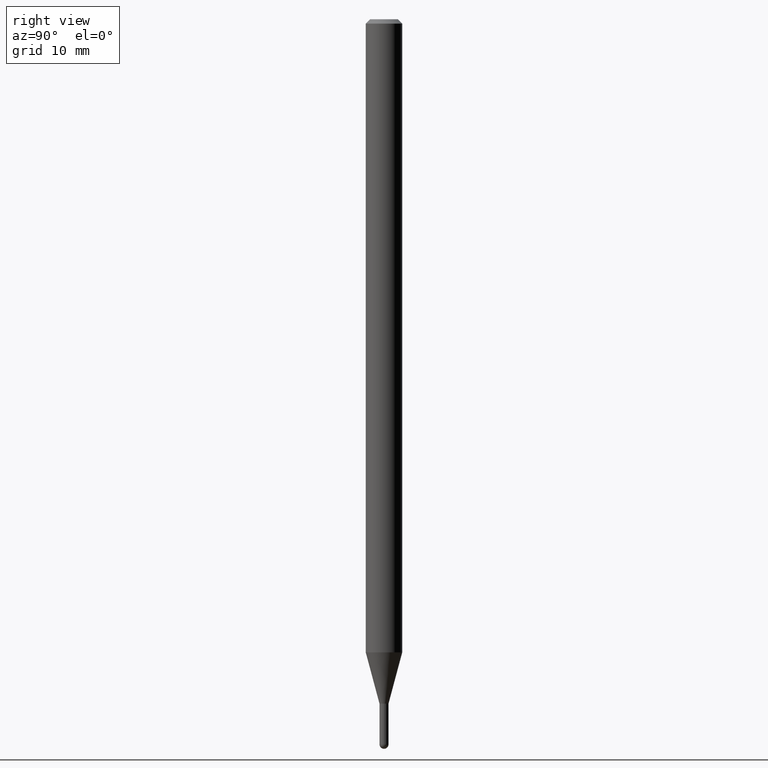
[diagram: clean part render]
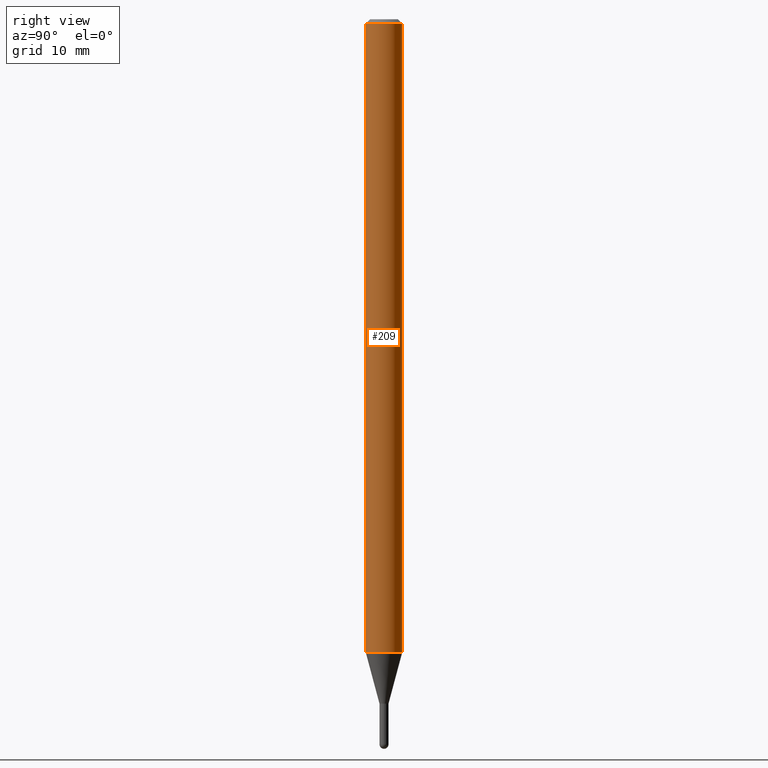
[diagram: same view with one face highlighted and labeled with its STEP entity id]
A machine part, right view. The second image highlights one B-rep face of the part: STEP entity #209.
In plain terms, the highlighted cylindrical surface (edge-blend (fillet) strip) has radius 1.5875 mm, axis along (-0, 0, 1).
Its self-contained STEP definition (entity closure, byte-faithful):
#6 = DIRECTION ( 'NONE',  ( -2.445469388235828600E-29, 3.491480505313426266E-15, 1.000000000000000000 ) ) ;
#18 = AXIS2_PLACEMENT_3D ( 'NONE', #236, #94, #242 ) ;
#43 = CIRCLE ( 'NONE', #111, 0.06250000000000000000 ) ;
#82 = CARTESIAN_POINT ( 'NONE',  ( 4.440892098501160615E-16, 0.06249999999999995837, -0.01500000000000022669 ) ) ;
#94 = DIRECTION ( 'NONE',  ( -2.445469388235828600E-29, 3.491480505313426266E-15, 1.000000000000000000 ) ) ;
#96 = ORIENTED_EDGE ( 'NONE', *, *, #347, .F. ) ;
#98 = VERTEX_POINT ( 'NONE', #186 ) ;
#111 = AXIS2_PLACEMENT_3D ( 'NONE', #481, #203, #168 ) ;
#166 = CARTESIAN_POINT ( 'NONE',  ( 5.305674763166256692E-29, -7.575093800905100250E-15, -2.169593612044267594 ) ) ;
#168 = DIRECTION ( 'NONE',  ( -6.982962677686265922E-15, -1.000000000000000000, 3.483106191921935554E-15 ) ) ;
#186 = CARTESIAN_POINT ( 'NONE',  ( -4.364351673553912750E-16, -0.06250000000000005551, -0.01499999999999979128 ) ) ;
#194 = DIRECTION ( 'NONE',  ( -2.445469388235828600E-29, 3.491480505313426266E-15, 1.000000000000000000 ) ) ;
#198 = DIRECTION ( 'NONE',  ( -6.982962677686265922E-15, -1.000000000000000000, 4.370956789862821150E-15 ) ) ;
#203 = DIRECTION ( 'NONE',  ( -2.445469388235828600E-29, 3.491480505313426266E-15, 1.000000000000000000 ) ) ;
#209 = ADVANCED_FACE ( 'NONE', ( #315 ), #282, .T. ) ;
#216 = VERTEX_POINT ( 'NONE', #483 ) ;
#218 = VECTOR ( 'NONE', #194, 39.37007874015748143 ) ;
#222 = LINE ( 'NONE', #353, #494 ) ;
#228 = CIRCLE ( 'NONE', #471, 0.06250000000000000000 ) ;
#236 = CARTESIAN_POINT ( 'NONE',  ( 0.000000000000000000, 0.000000000000000000, 0.000000000000000000 ) ) ;
#242 = DIRECTION ( 'NONE',  ( -6.982962677686265922E-15, -1.000000000000000000, 3.491480505313426266E-15 ) ) ;
#259 = EDGE_CURVE ( 'NONE', #216, #335, #228, .T. ) ;
#281 = VERTEX_POINT ( 'NONE', #82 ) ;
#282 = CYLINDRICAL_SURFACE ( 'NONE', #18, 0.06250000000000000000 ) ;
#293 = EDGE_CURVE ( 'NONE', #98, #281, #43, .T. ) ;
#315 = FACE_OUTER_BOUND ( 'NONE', #404, .T. ) ;
#335 = VERTEX_POINT ( 'NONE', #416 ) ;
#337 = ORIENTED_EDGE ( 'NONE', *, *, #293, .F. ) ;
#344 = EDGE_CURVE ( 'NONE', #335, #281, #386, .T. ) ;
#347 = EDGE_CURVE ( 'NONE', #216, #98, #222, .T. ) ;
#353 = CARTESIAN_POINT ( 'NONE',  ( -4.364351673553916201E-16, -0.06250000000000000000, 2.182175315820891416E-16 ) ) ;
#357 = DIRECTION ( 'NONE',  ( -2.445469388235828600E-29, 3.491480505313426266E-15, 1.000000000000000000 ) ) ;
#386 = LINE ( 'NONE', #389, #218 ) ;
#389 = CARTESIAN_POINT ( 'NONE',  ( 4.440892098500625669E-16, 0.06250000000000000000, -2.182175315820891416E-16 ) ) ;
#404 = EDGE_LOOP ( 'NONE', ( #448, #414, #337, #96 ) ) ;
#414 = ORIENTED_EDGE ( 'NONE', *, *, #344, .T. ) ;
#416 = CARTESIAN_POINT ( 'NONE',  ( 4.440892098501153712E-16, 0.06249999999999240191, -2.169593612044267594 ) ) ;
#448 = ORIENTED_EDGE ( 'NONE', *, *, #259, .T. ) ;
#471 = AXIS2_PLACEMENT_3D ( 'NONE', #166, #6, #198 ) ;
#481 = CARTESIAN_POINT ( 'NONE',  ( 3.668204082353745160E-31, -5.237220757970142554E-17, -0.01500000000000000812 ) ) ;
#483 = CARTESIAN_POINT ( 'NONE',  ( -4.364351673553386678E-16, -0.06250000000000759115, -2.169593612044267150 ) ) ;
#494 = VECTOR ( 'NONE', #357, 39.37007874015748143 ) ;